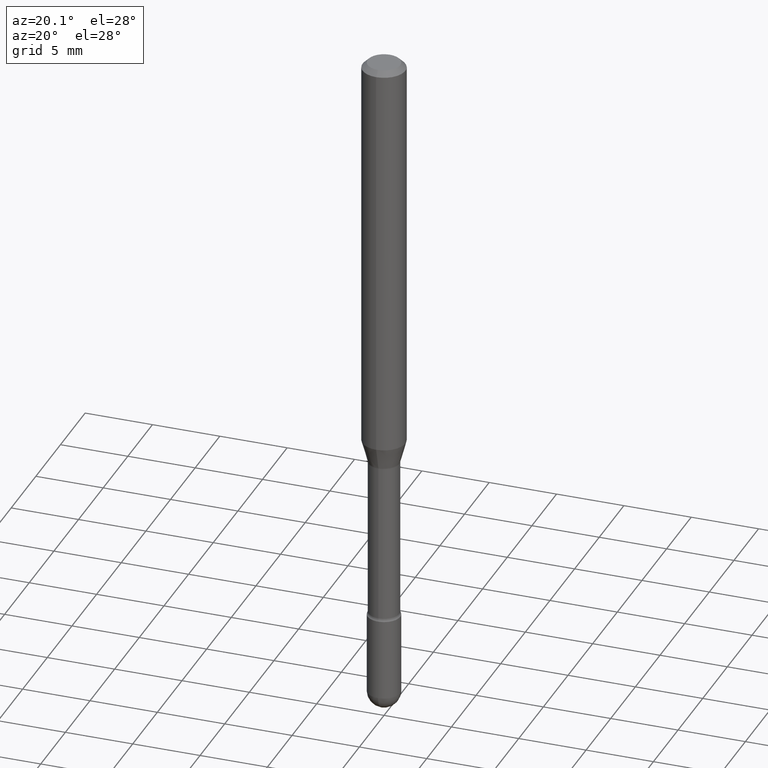
[diagram: clean part render]
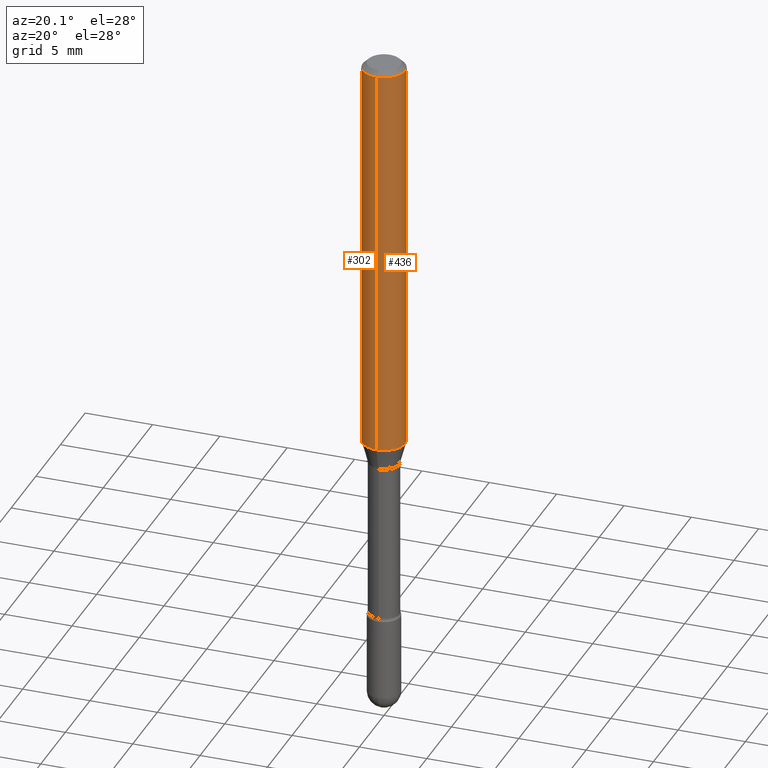
[diagram: same view with one multi-face feature highlighted, each face labeled with its STEP entity id]
A machine part, auxiliary view. The highlighted faces form ONE feature: a constant-radius fillet chain: 2 tangent blend faces with common blend radius 1.5875 mm. The faces share edges in the B-rep.
Their STEP definitions:
[1] entity #436 (Cylinder):
#16 = DIRECTION ( 'NONE',  ( -2.445448914856043624E-29, 3.491509824358551010E-15, 1.000000000000000000 ) ) ;
#75 = EDGE_CURVE ( 'NONE', #256, #224, #116, .T. ) ;
#100 = DIRECTION ( 'NONE',  ( -2.445448914856043624E-29, 3.491509824358551010E-15, 1.000000000000000000 ) ) ;
#108 = DIRECTION ( 'NONE',  ( -6.982962677686265922E-15, -1.000000000000000000, 3.491509824358550221E-15 ) ) ;
#115 = AXIS2_PLACEMENT_3D ( 'NONE', #354, #16, #137 ) ;
#116 = LINE ( 'NONE', #515, #244 ) ;
#118 = CIRCLE ( 'NONE', #458, 0.06250000000000000000 ) ;
#125 = EDGE_CURVE ( 'NONE', #224, #173, #118, .T. ) ;
#137 = DIRECTION ( 'NONE',  ( -6.982962677686265922E-15, -1.000000000000000000, 4.370956789862821150E-15 ) ) ;
#150 = CARTESIAN_POINT ( 'NONE',  ( -1.169113584055446105E-44, 1.669184350826100908E-30, 4.780733988912460139E-16 ) ) ;
#159 = ORIENTED_EDGE ( 'NONE', *, *, #377, .T. ) ;
#173 = VERTEX_POINT ( 'NONE', #542 ) ;
#209 = DIRECTION ( 'NONE',  ( -6.982962677686265922E-15, -1.000000000000000000, 3.483106191921935554E-15 ) ) ;
#224 = VERTEX_POINT ( 'NONE', #243 ) ;
#226 = CARTESIAN_POINT ( 'NONE',  ( 4.440892098500625669E-16, 0.06250000000000000000, 2.598540348688366251E-16 ) ) ;
#233 = VECTOR ( 'NONE', #437, 39.37007874015748143 ) ;
#234 = CIRCLE ( 'NONE', #115, 0.06250000000000000000 ) ;
#243 = CARTESIAN_POINT ( 'NONE',  ( -4.364351673553912750E-16, -0.06250000000000005551, -0.01499999999999986587 ) ) ;
#244 = VECTOR ( 'NONE', #428, 39.37007874015748143 ) ;
#247 = EDGE_CURVE ( 'NONE', #256, #534, #234, .T. ) ;
#256 = VERTEX_POINT ( 'NONE', #418 ) ;
#273 = ORIENTED_EDGE ( 'NONE', *, *, #75, .F. ) ;
#296 = DIRECTION ( 'NONE',  ( -2.445448914856043624E-29, 3.491509824358551010E-15, 1.000000000000000000 ) ) ;
#322 = CYLINDRICAL_SURFACE ( 'NONE', #526, 0.06250000000000000000 ) ;
#344 = ORIENTED_EDGE ( 'NONE', *, *, #247, .T. ) ;
#354 = CARTESIAN_POINT ( 'NONE',  ( 2.869447922605103141E-29, -4.096877898940172481E-15, -1.173382893084895739 ) ) ;
#377 = EDGE_CURVE ( 'NONE', #534, #173, #518, .T. ) ;
#418 = CARTESIAN_POINT ( 'NONE',  ( -4.364351673553627281E-16, -0.06250000000000405231, -1.173382893084895295 ) ) ;
#428 = DIRECTION ( 'NONE',  ( -2.445448914856043344E-29, 3.491509824358551010E-15, 1.000000000000000000 ) ) ;
#436 = ADVANCED_FACE ( 'NONE', ( #463 ), #322, .T. ) ;
#437 = DIRECTION ( 'NONE',  ( -2.445448914856043344E-29, 3.491509824358551010E-15, 1.000000000000000000 ) ) ;
#453 = CARTESIAN_POINT ( 'NONE',  ( 3.668173372284085650E-31, -5.237264736537854963E-17, -0.01500000000000008271 ) ) ;
#458 = AXIS2_PLACEMENT_3D ( 'NONE', #453, #296, #209 ) ;
#463 = FACE_OUTER_BOUND ( 'NONE', #553, .T. ) ;
#515 = CARTESIAN_POINT ( 'NONE',  ( -4.364351673553916201E-16, -0.06250000000000000000, 6.962927629136555013E-16 ) ) ;
#518 = LINE ( 'NONE', #226, #233 ) ;
#526 = AXIS2_PLACEMENT_3D ( 'NONE', #150, #100, #108 ) ;
#534 = VERTEX_POINT ( 'NONE', #560 ) ;
#537 = ORIENTED_EDGE ( 'NONE', *, *, #125, .F. ) ;
#542 = CARTESIAN_POINT ( 'NONE',  ( 4.440892098500914096E-16, 0.06249999999999995143, -0.01500000000000030129 ) ) ;
#553 = EDGE_LOOP ( 'NONE', ( #344, #159, #537, #273 ) ) ;
#560 = CARTESIAN_POINT ( 'NONE',  ( 4.440892098500914096E-16, 0.06249999999999593381, -1.173382893084895962 ) ) ;
[2] entity #302 (Cylinder):
#4 = DIRECTION ( 'NONE',  ( -2.445448914856043624E-29, 3.491509824358551010E-15, 1.000000000000000000 ) ) ;
#10 = ORIENTED_EDGE ( 'NONE', *, *, #377, .F. ) ;
#34 = CIRCLE ( 'NONE', #120, 0.06250000000000000000 ) ;
#54 = EDGE_LOOP ( 'NONE', ( #10, #249, #486, #429 ) ) ;
#70 = DIRECTION ( 'NONE',  ( -6.982962677686265922E-15, -1.000000000000000000, 3.483106191921935554E-15 ) ) ;
#75 = EDGE_CURVE ( 'NONE', #256, #224, #116, .T. ) ;
#116 = LINE ( 'NONE', #515, #244 ) ;
#120 = AXIS2_PLACEMENT_3D ( 'NONE', #374, #552, #211 ) ;
#122 = CYLINDRICAL_SURFACE ( 'NONE', #339, 0.06250000000000000000 ) ;
#131 = CIRCLE ( 'NONE', #373, 0.06250000000000000000 ) ;
#173 = VERTEX_POINT ( 'NONE', #542 ) ;
#211 = DIRECTION ( 'NONE',  ( -6.982962677686265922E-15, -1.000000000000000000, 4.370956789862821150E-15 ) ) ;
#213 = EDGE_CURVE ( 'NONE', #534, #256, #34, .T. ) ;
#224 = VERTEX_POINT ( 'NONE', #243 ) ;
#226 = CARTESIAN_POINT ( 'NONE',  ( 4.440892098500625669E-16, 0.06250000000000000000, 2.598540348688366251E-16 ) ) ;
#233 = VECTOR ( 'NONE', #437, 39.37007874015748143 ) ;
#243 = CARTESIAN_POINT ( 'NONE',  ( -4.364351673553912750E-16, -0.06250000000000005551, -0.01499999999999986587 ) ) ;
#244 = VECTOR ( 'NONE', #428, 39.37007874015748143 ) ;
#249 = ORIENTED_EDGE ( 'NONE', *, *, #213, .T. ) ;
#256 = VERTEX_POINT ( 'NONE', #418 ) ;
#274 = EDGE_CURVE ( 'NONE', #173, #224, #131, .T. ) ;
#302 = ADVANCED_FACE ( 'NONE', ( #519 ), #122, .T. ) ;
#328 = CARTESIAN_POINT ( 'NONE',  ( 3.668173372284085650E-31, -5.237264736537854963E-17, -0.01500000000000008271 ) ) ;
#339 = AXIS2_PLACEMENT_3D ( 'NONE', #459, #361, #488 ) ;
#361 = DIRECTION ( 'NONE',  ( -2.445448914856043624E-29, 3.491509824358551010E-15, 1.000000000000000000 ) ) ;
#373 = AXIS2_PLACEMENT_3D ( 'NONE', #328, #4, #70 ) ;
#374 = CARTESIAN_POINT ( 'NONE',  ( 2.869447922605103141E-29, -4.096877898940172481E-15, -1.173382893084895739 ) ) ;
#377 = EDGE_CURVE ( 'NONE', #534, #173, #518, .T. ) ;
#418 = CARTESIAN_POINT ( 'NONE',  ( -4.364351673553627281E-16, -0.06250000000000405231, -1.173382893084895295 ) ) ;
#428 = DIRECTION ( 'NONE',  ( -2.445448914856043344E-29, 3.491509824358551010E-15, 1.000000000000000000 ) ) ;
#429 = ORIENTED_EDGE ( 'NONE', *, *, #274, .F. ) ;
#437 = DIRECTION ( 'NONE',  ( -2.445448914856043344E-29, 3.491509824358551010E-15, 1.000000000000000000 ) ) ;
#459 = CARTESIAN_POINT ( 'NONE',  ( -1.169113584055446105E-44, 1.669184350826100908E-30, 4.780733988912460139E-16 ) ) ;
#486 = ORIENTED_EDGE ( 'NONE', *, *, #75, .T. ) ;
#488 = DIRECTION ( 'NONE',  ( -6.982962677686265922E-15, -1.000000000000000000, 3.491509824358550221E-15 ) ) ;
#515 = CARTESIAN_POINT ( 'NONE',  ( -4.364351673553916201E-16, -0.06250000000000000000, 6.962927629136555013E-16 ) ) ;
#518 = LINE ( 'NONE', #226, #233 ) ;
#519 = FACE_OUTER_BOUND ( 'NONE', #54, .T. ) ;
#534 = VERTEX_POINT ( 'NONE', #560 ) ;
#542 = CARTESIAN_POINT ( 'NONE',  ( 4.440892098500914096E-16, 0.06249999999999995143, -0.01500000000000030129 ) ) ;
#552 = DIRECTION ( 'NONE',  ( -2.445448914856043624E-29, 3.491509824358551010E-15, 1.000000000000000000 ) ) ;
#560 = CARTESIAN_POINT ( 'NONE',  ( 4.440892098500914096E-16, 0.06249999999999593381, -1.173382893084895962 ) ) ;